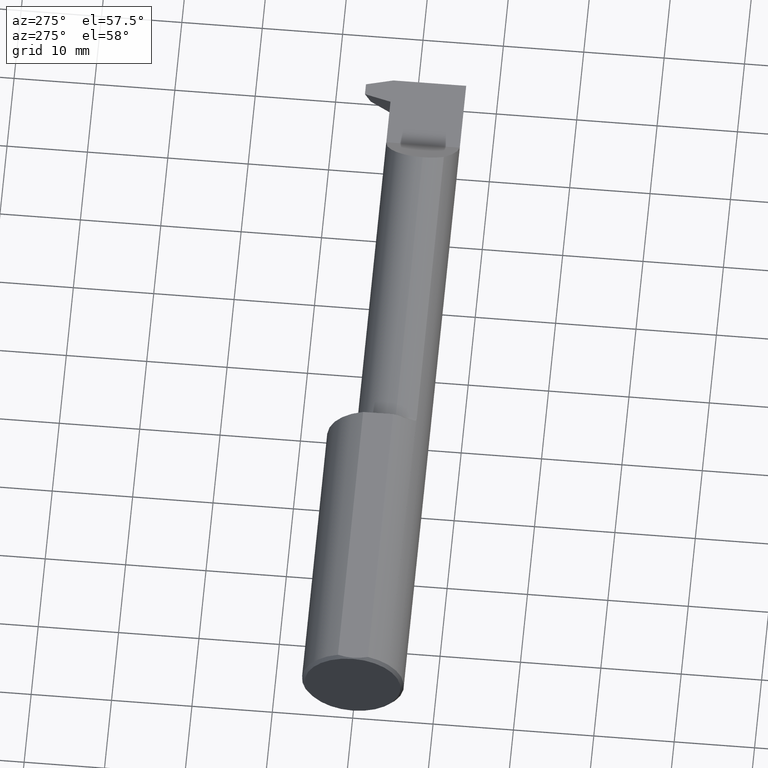
[diagram: clean part render]
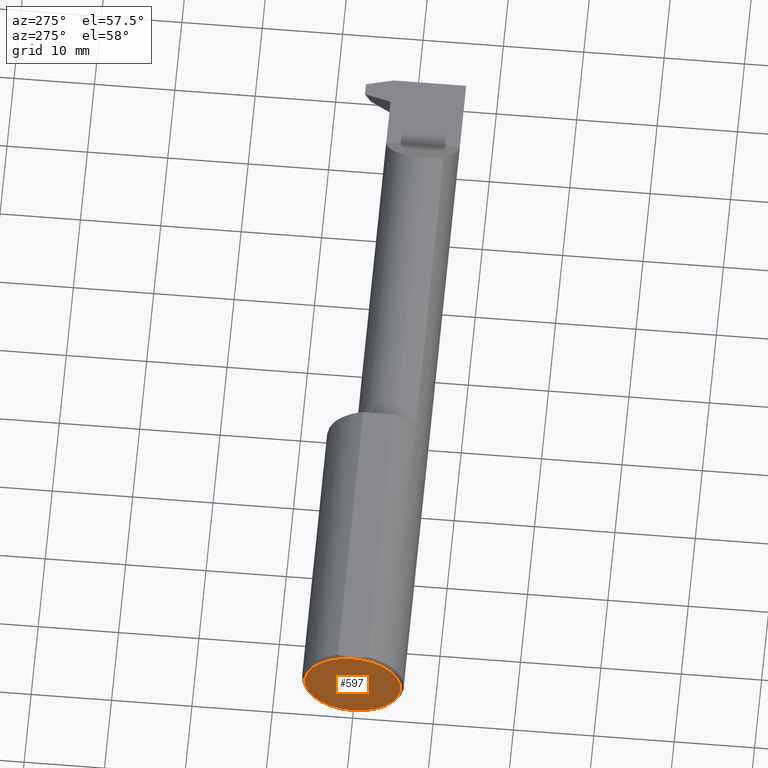
[diagram: same view with one face highlighted and labeled with its STEP entity id]
A machine part, auxiliary view. The second image highlights one B-rep face of the part: STEP entity #597.
In plain terms, the highlighted planar face has unit normal (1, 0, 0).
Its self-contained STEP definition (entity closure, byte-faithful):
#50 = VERTEX_POINT ( 'NONE', #151 ) ;
#102 = VERTEX_POINT ( 'NONE', #542 ) ;
#106 = CIRCLE ( 'NONE', #655, 0.2348499999999998089 ) ;
#123 = FACE_OUTER_BOUND ( 'NONE', #841, .T. ) ;
#135 = ORIENTED_EDGE ( 'NONE', *, *, #741, .T. ) ;
#151 = CARTESIAN_POINT ( 'NONE',  ( 0.000000000000000000, 0.000000000000000000, -0.2348499999999998089 ) ) ;
#196 = CARTESIAN_POINT ( 'NONE',  ( 0.000000000000000000, 0.000000000000000000, 0.000000000000000000 ) ) ;
#200 = CARTESIAN_POINT ( 'NONE',  ( 0.000000000000000000, 0.000000000000000000, 0.000000000000000000 ) ) ;
#203 = DIRECTION ( 'NONE',  ( -1.000000000000000000, -0.000000000000000000, -0.000000000000000000 ) ) ;
#245 = CIRCLE ( 'NONE', #800, 0.2348499999999998089 ) ;
#356 = DIRECTION ( 'NONE',  ( 0.000000000000000000, 0.000000000000000000, -1.000000000000000000 ) ) ;
#408 = DIRECTION ( 'NONE',  ( 1.000000000000000000, 0.000000000000000000, 0.000000000000000000 ) ) ;
#542 = CARTESIAN_POINT ( 'NONE',  ( 0.000000000000000000, 2.967931517733608795E-17, 0.2348499999999998089 ) ) ;
#584 = CARTESIAN_POINT ( 'NONE',  ( 0.000000000000000000, 0.000000000000000000, 0.000000000000000000 ) ) ;
#597 = ADVANCED_FACE ( 'NONE', ( #123 ), #797, .F. ) ;
#655 = AXIS2_PLACEMENT_3D ( 'NONE', #584, #203, #779 ) ;
#712 = DIRECTION ( 'NONE',  ( 0.000000000000000000, 0.000000000000000000, -1.000000000000000000 ) ) ;
#723 = AXIS2_PLACEMENT_3D ( 'NONE', #196, #408, #712 ) ;
#741 = EDGE_CURVE ( 'NONE', #50, #102, #245, .T. ) ;
#779 = DIRECTION ( 'NONE',  ( 0.000000000000000000, 0.000000000000000000, -1.000000000000000000 ) ) ;
#797 = PLANE ( 'NONE',  #723 ) ;
#800 = AXIS2_PLACEMENT_3D ( 'NONE', #200, #804, #356 ) ;
#804 = DIRECTION ( 'NONE',  ( -1.000000000000000000, -0.000000000000000000, -0.000000000000000000 ) ) ;
#806 = EDGE_CURVE ( 'NONE', #102, #50, #106, .T. ) ;
#841 = EDGE_LOOP ( 'NONE', ( #135, #931 ) ) ;
#931 = ORIENTED_EDGE ( 'NONE', *, *, #806, .T. ) ;